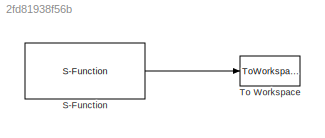
MODEL slx_2fd81938f56b
KIND model
BLOCK [S-Function] S-Function
  EnableBusSupport = off
  FunctionName = lidarOnly
  Ports = [0, 1]
BLOCK [ToWorkspace] To Workspace
  FixptAsFi = on
  MaxDataPoints = inf
  Ports = [1]
  SampleTime = -1
  Save2DSignal = 3-D array (concatenate along third dimension)
  SaveFormat = Timeseries
  VariableName = simout
LINE S-Function:1 -> To Workspace:1
